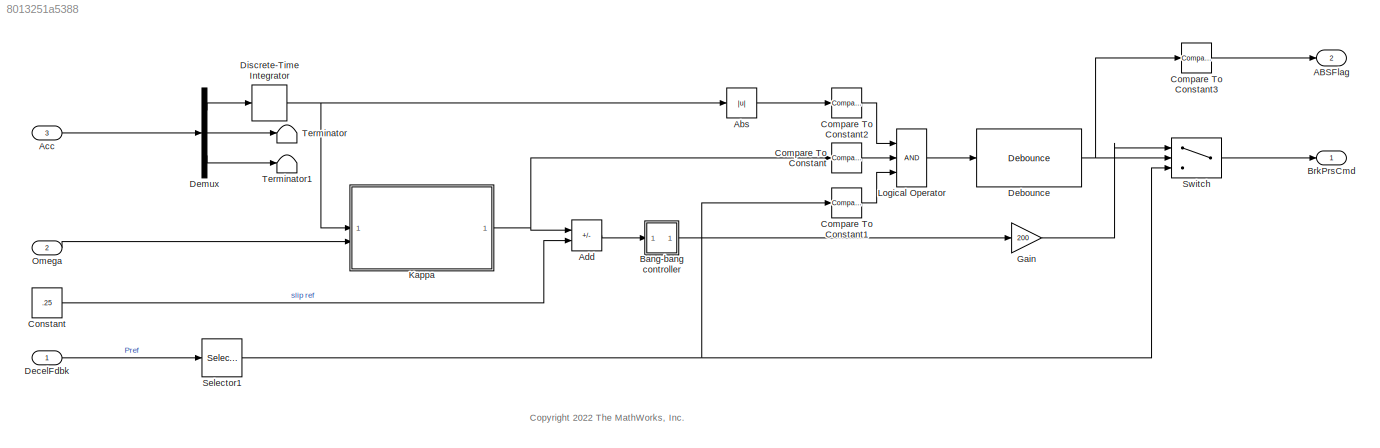
MODEL slx_8013251a5388
KIND model
BLOCK [Outport] ABSFlag
  OutDataTypeStr = boolean
  Port = 2
  PortDimensions = 4
BLOCK [Abs] Abs
  SaturateOnIntegerOverflow = off
BLOCK [Inport] Acc
  OutDataTypeStr = double
  Port = 3
  PortDimensions = 3
BLOCK [Sum] Add
  IconShape = rectangular
  Inputs = -+
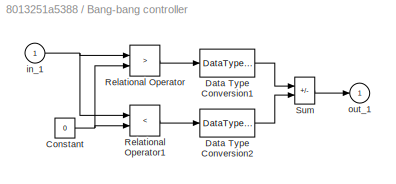
BLOCK [SubSystem] Bang-bang controller
  ShowPortLabels = none
BLOCK [Constant] Bang-bang controller/Constant
  Value = 0
BLOCK [DataTypeConversion] Bang-bang controller/Data Type Conversion1
  OutDataTypeStr = double
BLOCK [DataTypeConversion] Bang-bang controller/Data Type Conversion2
  OutDataTypeStr = double
BLOCK [RelationalOperator] Bang-bang controller/Relational Operator
  Operator = >
  OutDataTypeStr = boolean
BLOCK [RelationalOperator] Bang-bang controller/Relational Operator1
  Operator = <
  OutDataTypeStr = boolean
BLOCK [Sum] Bang-bang controller/Sum
  IconShape = rectangular
  InputSameDT = on
  Inputs = +-
  OutDataTypeStr = Inherit: Same as first input
  SaturateOnIntegerOverflow = on
BLOCK [Inport] Bang-bang controller/in_1
BLOCK [Outport] Bang-bang controller/out_1
  InitialOutput = 0
  VectorParamsAs1DForOutWhenUnconnected = off
BLOCK [Outport] BrkPrsCmd
  OutDataTypeStr = double
  PortDimensions = 4
  VectorParamsAs1DForOutWhenUnconnected = off
BLOCK [Reference] Compare To Constant  REF=simulink/Logic and Bit
Operations/Compare
To Constant
  SourceBlock = simulink/Logic and Bit\nOperations/Compare\nTo Constant
  SourceType = Compare To Constant
BLOCK [Reference] Compare To Constant1  REF=simulink/Logic and Bit
Operations/Compare
To Constant
  SourceBlock = simulink/Logic and Bit\nOperations/Compare\nTo Constant
  SourceType = Compare To Constant
BLOCK [Reference] Compare To Constant2  REF=simulink/Logic and Bit
Operations/Compare
To Constant
  SourceBlock = simulink/Logic and Bit\nOperations/Compare\nTo Constant
  SourceType = Compare To Constant
BLOCK [Reference] Compare To Constant3  REF=simulink/Logic and Bit
Operations/Compare
To Constant
  SourceBlock = simulink/Logic and Bit\nOperations/Compare\nTo Constant
  SourceType = Compare To Constant
BLOCK [Constant] Constant
  Value = .25
BLOCK [Reference] Debounce  REF=autolibutils/Debounce
  SourceBlock = autolibutils/Debounce
  SourceType = Debounce
BLOCK [Inport] DecelFdbk
  OutDataTypeStr = double
  PortDimensions = 1
BLOCK [Demux] Demux
  Outputs = 3
BLOCK [DiscreteIntegrator] Discrete-Time Integrator
  ICPrevOutput = DiscIntNeverNeededParam
  ICPrevScaledInput = DiscIntNeverNeededParam
  InitialConditionSetting = Auto
  SampleTime = -1
BLOCK [Gain] Gain
  Gain = 200
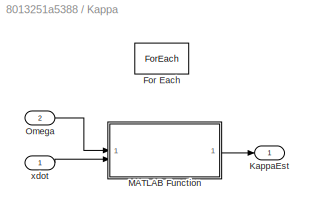
BLOCK [SubSystem] Kappa
  TreatAsAtomicUnit = on
BLOCK [ForEach] Kappa/For Each
  DisableCoverage = on
BLOCK [Outport] Kappa/KappaEst
  ConcatenationDimension = 1
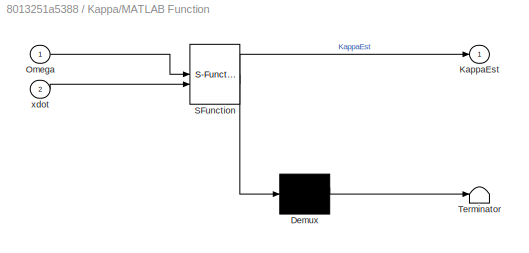
BLOCK [SubSystem] Kappa/MATLAB Function
  ErrorFcn = Stateflow.Translate.translate
  PermitHierarchicalResolution = ExplicitOnly
  SFBlockType = MATLAB Function
  TreatAsAtomicUnit = on
BLOCK [Demux] Kappa/MATLAB Function/ Demux 
  Outputs = 1
BLOCK [S-Function] Kappa/MATLAB Function/ SFunction 
  EnableBusSupport = off
  FunctionName = sf_sfun
  PortCounts = [2 2]
  SFcnIsStateOwnerBlock = off
  SFunctionDeploymentMode = off
  Tag = Stateflow S-Function 5
BLOCK [Terminator] Kappa/MATLAB Function/ Terminator 
BLOCK [Outport] Kappa/MATLAB Function/KappaEst
BLOCK [Inport] Kappa/MATLAB Function/Omega
BLOCK [Inport] Kappa/MATLAB Function/xdot
  Port = 2
BLOCK [Inport] Kappa/Omega
  Partition = on
  PartitionDimension = 1
  PartitionOffset = 0
  PartitionWidth = 1
  Port = 2
BLOCK [Inport] Kappa/xdot
BLOCK [Logic] Logical Operator
  AllPortsSameDT = off
  Inputs = 3
  OutDataTypeStr = boolean
BLOCK [Inport] Omega
  OutDataTypeStr = double
  Port = 2
  PortDimensions = 4
BLOCK [Selector] Selector1
  IndexOptions = Index vector (dialog)
  Indices = [1 1 1 1]
  InputPortWidth = 1
  OutputSizes = 1
BLOCK [Switch] Switch
  Criteria = u2 > Threshold
  InputSameDT = off
  SaturateOnIntegerOverflow = off
  ZeroCross = off
BLOCK [Terminator] Terminator
BLOCK [Terminator] Terminator1
ANNOTATION (root): <copyright redacted>
LINE Abs:1 -> Compare To Constant2:1
LINE Acc:1 -> Demux:1
LINE Add:1 -> Bang-bang controller:1
NET Bang-bang controller/Constant:1 -> Bang-bang controller/Relational Operator1:2, Bang-bang controller/Relational Operator:2
LINE Bang-bang controller/Data Type Conversion1:1 -> Bang-bang controller/Sum:1
LINE Bang-bang controller/Data Type Conversion2:1 -> Bang-bang controller/Sum:2
LINE Bang-bang controller/Relational Operator1:1 -> Bang-bang controller/Data Type Conversion2:1
LINE Bang-bang controller/Relational Operator:1 -> Bang-bang controller/Data Type Conversion1:1
LINE Bang-bang controller/Sum:1 -> Bang-bang controller/out_1:1
NET Bang-bang controller/in_1:1 -> Bang-bang controller/Relational Operator1:1, Bang-bang controller/Relational Operator:1
LINE Bang-bang controller:1 -> Gain:1
LINE Compare To Constant1:1 -> Logical Operator:3
LINE Compare To Constant2:1 -> Logical Operator:1
LINE Compare To Constant3:1 -> ABSFlag:1
LINE Compare To Constant:1 -> Logical Operator:2
LINE Constant:1 -> Add:2
NET Debounce:1 -> Compare To Constant3:1, Switch:2
LINE DecelFdbk:1 -> Selector1:1
LINE Demux:1 -> Discrete-Time Integrator:1
LINE Demux:2 -> Terminator:1
LINE Demux:3 -> Terminator1:1
NET Discrete-Time Integrator:1 -> Abs:1, Kappa:1
LINE Gain:1 -> Switch:1
LINE Kappa/MATLAB Function:1 -> Kappa/KappaEst:1
LINE Kappa/Omega:1 -> Kappa/MATLAB Function:1
LINE Kappa/xdot:1 -> Kappa/MATLAB Function:2
NET Kappa:1 -> Add:1, Compare To Constant:1
LINE Logical Operator:1 -> Debounce:1
LINE Omega:1 -> Kappa:2
NET Selector1:1 -> Compare To Constant1:1, Switch:3
LINE Switch:1 -> BrkPrsCmd:1
note: NET lines group one-source signal fan-out (src -> all destinations, sorted); 1:1 wires keep LINE
CHART Kappa/MATLAB Function states=1 transitions=1
  STATE_LABEL 'eML_blk_kernel()'
  STATE_LABEL 'SCRIPT:\nfunction KappaEst = fcn(Omega, xdot)\n\nRe = 0.29;\nKappaEst = 0;\nWhlSpd = Omega * Re;\n\nif xdot*WhlSpd ~= 0\n    KappaEst = (WhlSpd - xdot)/max([abs(xdot) abs(WhlSpd)]);\nend\n'
CHART  states=0 transitions=0
